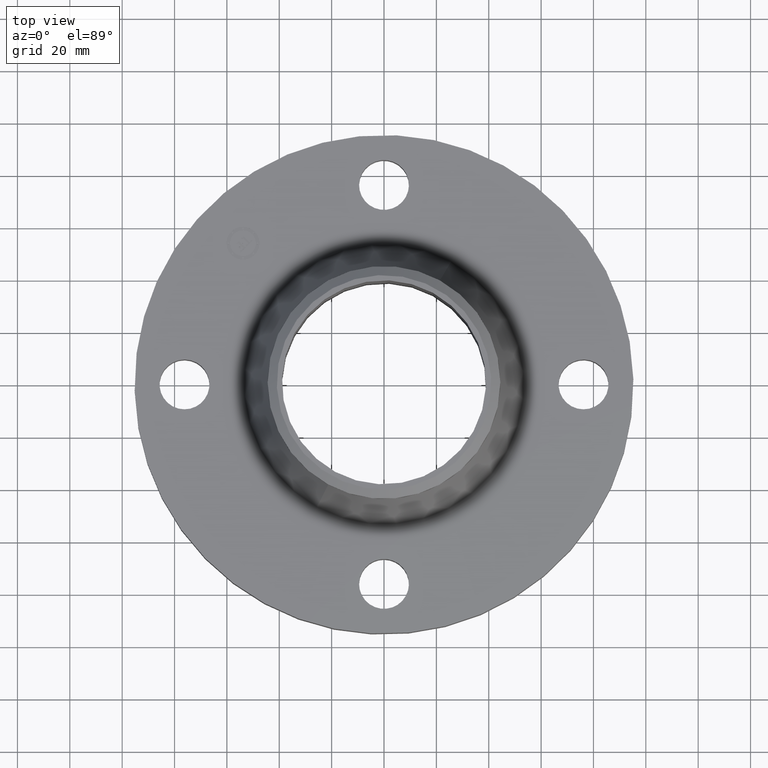
[diagram: clean part render]
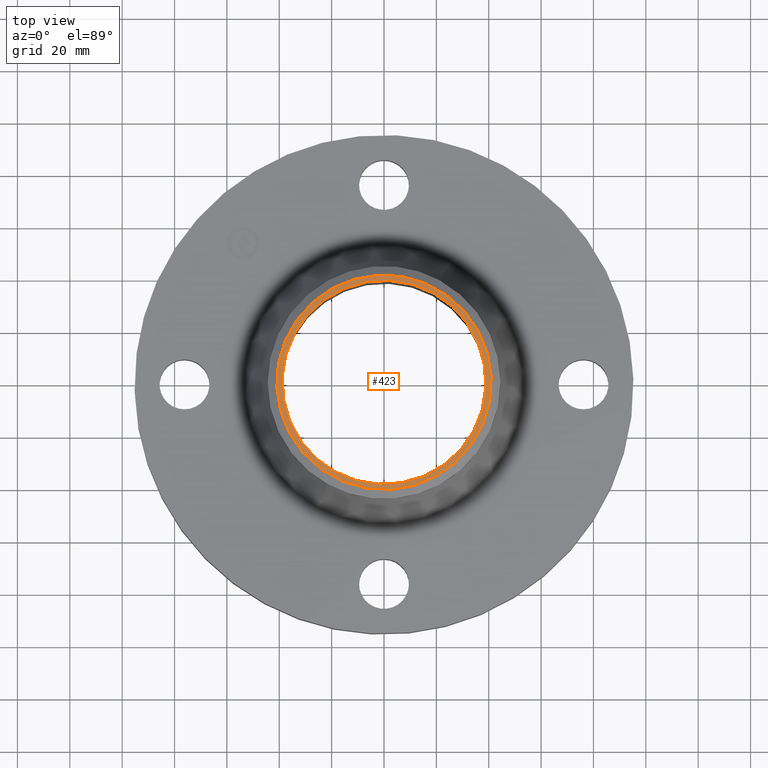
[diagram: same view with one face highlighted and labeled with its STEP entity id]
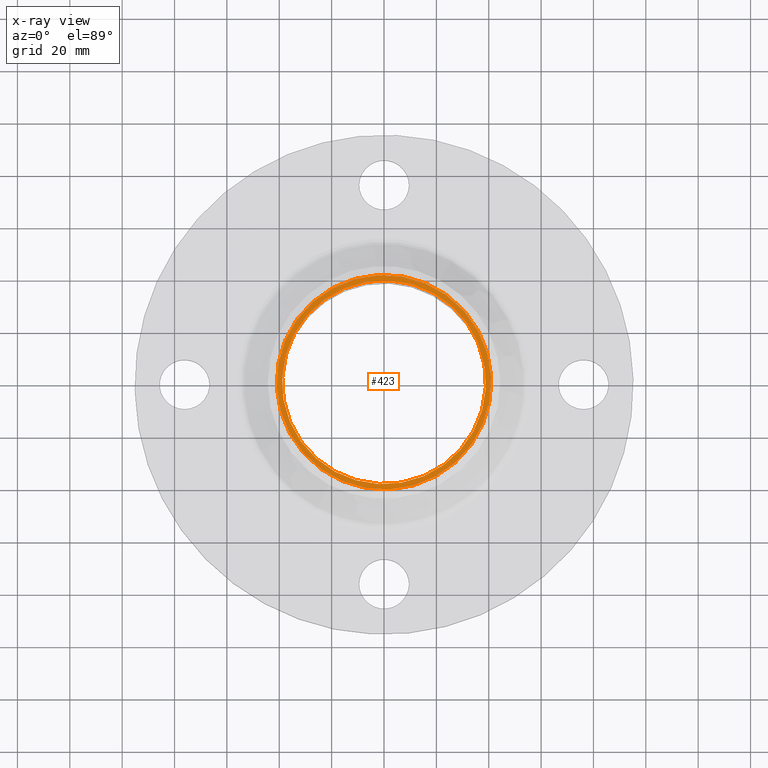
[diagram: x-ray of the same camera — body ghosted, the highlighted face saturated]
A machine part, top view. The second image highlights one B-rep face of the part: STEP entity #423.
The next image is the same camera in x-ray: the body ghosted, the highlighted face saturated — about 0% of this face is hidden behind the body in this view.
In plain terms, the highlighted planar face has unit normal (0, 0, -1).
Its self-contained STEP definition (entity closure, byte-faithful):
#330=AXIS2_PLACEMENT_3D('Circle Axis2P3D',#328,#329,$) ;
#355=AXIS2_PLACEMENT_3D('Circle Axis2P3D',#353,#354,$) ;
#390=AXIS2_PLACEMENT_3D('Circle Axis2P3D',#388,#389,$) ;
#408=AXIS2_PLACEMENT_3D('Plane Axis2P3D',#405,#406,#407) ;
#412=AXIS2_PLACEMENT_3D('Circle Axis2P3D',#410,#411,$) ;
#325=CARTESIAN_POINT('Vertex',(0.773188818632,-1.41531263907,2.69000000001)) ;
#328=CARTESIAN_POINT('Axis2P3D Location',(0.,0.,2.69000000001)) ;
#332=CARTESIAN_POINT('Vertex',(-0.773188818632,1.41531263907,2.69000000001)) ;
#353=CARTESIAN_POINT('Axis2P3D Location',(0.,0.,2.69000000001)) ;
#357=CARTESIAN_POINT('Vertex',(0.735438776222,1.34621164995,2.69000000001)) ;
#359=CARTESIAN_POINT('Vertex',(-0.735438776222,-1.34621164995,2.69000000001)) ;
#388=CARTESIAN_POINT('Axis2P3D Location',(0.,0.,2.69000000001)) ;
#405=CARTESIAN_POINT('Axis2P3D Location',(0.,1.75000000001,2.69000000001)) ;
#410=CARTESIAN_POINT('Axis2P3D Location',(0.,0.,2.69000000001)) ;
#329=DIRECTION('Axis2P3D Direction',(0.,0.,-0.0393700787402)) ;
#354=DIRECTION('Axis2P3D Direction',(0.,0.,-0.0393700787402)) ;
#389=DIRECTION('Axis2P3D Direction',(0.,0.,-0.0393700787402)) ;
#406=DIRECTION('Axis2P3D Direction',(0.,0.,-0.0393700787402)) ;
#407=DIRECTION('Axis2P3D XDirection',(0.0393700787402,0.,0.)) ;
#411=DIRECTION('Axis2P3D Direction',(0.,0.,-0.0393700787402)) ;
#416=ORIENTED_EDGE('',*,*,#414,.T.) ;
#417=ORIENTED_EDGE('',*,*,#334,.T.) ;
#420=ORIENTED_EDGE('',*,*,#392,.T.) ;
#421=ORIENTED_EDGE('',*,*,#361,.T.) ;
#422=FACE_BOUND('',#419,.T.) ;
#423=ADVANCED_FACE('PartBody',(#418,#422),#409,.F.) ;
#331=CIRCLE('generated circle',#330,1.61274015749) ;
#356=CIRCLE('generated circle',#355,1.53400000001) ;
#391=CIRCLE('generated circle',#390,1.53400000001) ;
#413=CIRCLE('generated circle',#412,1.61274015749) ;
#334=EDGE_CURVE('',#333,#326,#331,.F.) ;
#361=EDGE_CURVE('',#358,#360,#356,.T.) ;
#392=EDGE_CURVE('',#360,#358,#391,.T.) ;
#414=EDGE_CURVE('',#326,#333,#413,.F.) ;
#415=EDGE_LOOP('',(#416,#417)) ;
#419=EDGE_LOOP('',(#420,#421)) ;
#418=FACE_OUTER_BOUND('',#415,.T.) ;
#409=PLANE('',#408) ;
#326=VERTEX_POINT('',#325) ;
#333=VERTEX_POINT('',#332) ;
#358=VERTEX_POINT('',#357) ;
#360=VERTEX_POINT('',#359) ;